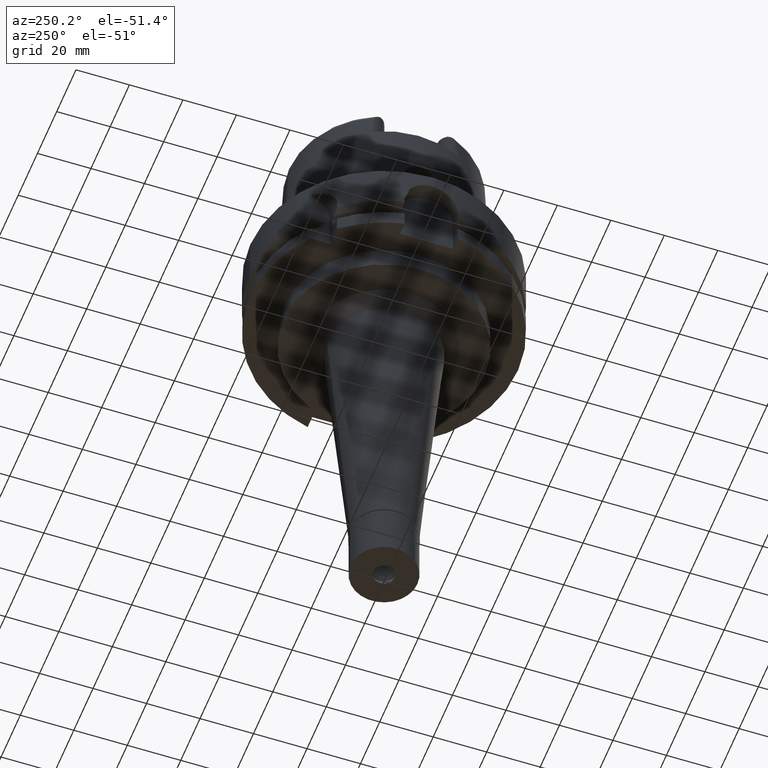
[diagram: clean part render]
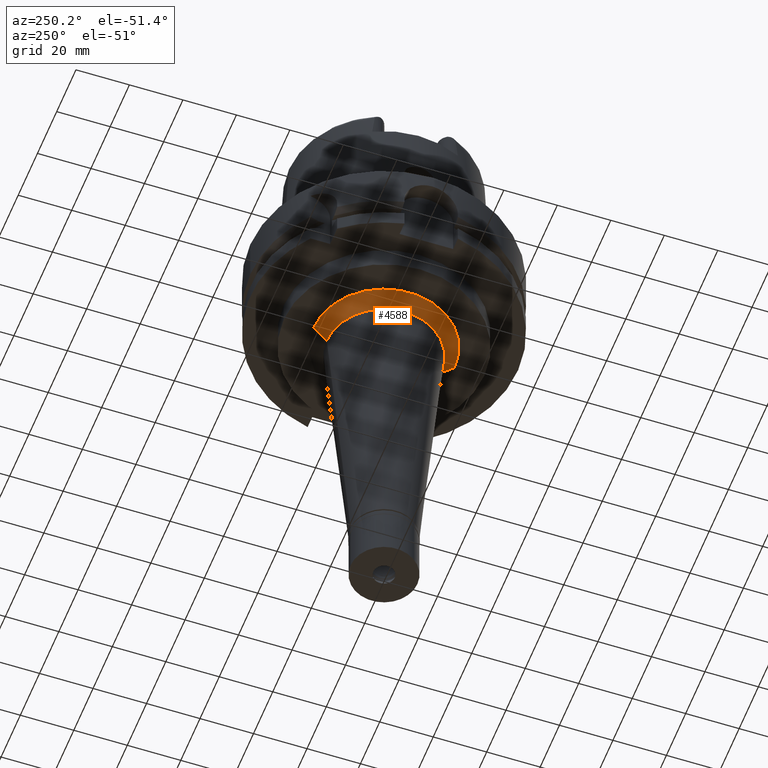
[diagram: same view with one face highlighted and labeled with its STEP entity id]
A machine part, auxiliary view. The second image highlights one B-rep face of the part: STEP entity #4588.
In plain terms, the highlighted conical surface has half-angle 45 deg.
Its self-contained STEP definition (entity closure, byte-faithful):
#143 = AXIS2_PLACEMENT_3D ( 'NONE', #2489, #2879, #4205 ) ;
#220 = DIRECTION ( 'NONE',  ( 0.0000000000000000000, -0.7071067811867980391, -0.7071067811862969954 ) ) ;
#276 = ORIENTED_EDGE ( 'NONE', *, *, #2790, .T. ) ;
#277 = CARTESIAN_POINT ( 'NONE',  ( 0.0000000000000000000, 26.39759708058999976, -37.00000000000000000 ) ) ;
#464 = CONICAL_SURFACE ( 'NONE', #4869, 23.89759708058999976, 0.7853981633972997312 ) ;
#476 = DIRECTION ( 'NONE',  ( 0.0000000000000000000, -1.000000000000000000, 0.0000000000000000000 ) ) ;
#864 = VERTEX_POINT ( 'NONE', #4962 ) ;
#1095 = CIRCLE ( 'NONE', #3434, 26.39759708058999976 ) ;
#1266 = FACE_OUTER_BOUND ( 'NONE', #1378, .T. ) ;
#1378 = EDGE_LOOP ( 'NONE', ( #2339, #3294, #2104, #276 ) ) ;
#1404 = CARTESIAN_POINT ( 'NONE',  ( 0.0000000000000000000, -26.39759708058999976, -37.00000000000000000 ) ) ;
#1807 = EDGE_CURVE ( 'NONE', #4840, #3418, #4815, .T. ) ;
#1961 = CARTESIAN_POINT ( 'NONE',  ( 0.0000000000000000000, -21.39759708058999976, -42.00000000000000000 ) ) ;
#2104 = ORIENTED_EDGE ( 'NONE', *, *, #4343, .T. ) ;
#2227 = VERTEX_POINT ( 'NONE', #4394 ) ;
#2339 = ORIENTED_EDGE ( 'NONE', *, *, #3365, .F. ) ;
#2489 = CARTESIAN_POINT ( 'NONE',  ( 0.0000000000000000000, 0.0000000000000000000, -42.00000000000000000 ) ) ;
#2736 = VECTOR ( 'NONE', #3605, 1000.000000000000000 ) ;
#2790 = EDGE_CURVE ( 'NONE', #864, #2227, #3604, .T. ) ;
#2844 = CIRCLE ( 'NONE', #143, 21.39759708058999976 ) ;
#2879 = DIRECTION ( 'NONE',  ( 0.0000000000000000000, 0.0000000000000000000, -1.000000000000000000 ) ) ;
#2999 = CARTESIAN_POINT ( 'NONE',  ( 0.0000000000000000000, 0.0000000000000000000, -39.50000000000000000 ) ) ;
#3294 = ORIENTED_EDGE ( 'NONE', *, *, #1807, .F. ) ;
#3365 = EDGE_CURVE ( 'NONE', #3418, #2227, #2844, .T. ) ;
#3367 = DIRECTION ( 'NONE',  ( 0.0000000000000000000, 1.000000000000000000, 0.0000000000000000000 ) ) ;
#3418 = VERTEX_POINT ( 'NONE', #1961 ) ;
#3434 = AXIS2_PLACEMENT_3D ( 'NONE', #3463, #4338, #476 ) ;
#3463 = CARTESIAN_POINT ( 'NONE',  ( 0.0000000000000000000, 0.0000000000000000000, -37.00000000000000000 ) ) ;
#3501 = CARTESIAN_POINT ( 'NONE',  ( 0.0000000000000000000, -26.39759708058999976, -37.00000000000000000 ) ) ;
#3604 = LINE ( 'NONE', #277, #4999 ) ;
#3605 = DIRECTION ( 'NONE',  ( 0.0000000000000000000, 0.7071067811867980391, -0.7071067811862969954 ) ) ;
#4205 = DIRECTION ( 'NONE',  ( 0.0000000000000000000, -1.000000000000000000, 0.0000000000000000000 ) ) ;
#4338 = DIRECTION ( 'NONE',  ( 0.0000000000000000000, 0.0000000000000000000, -1.000000000000000000 ) ) ;
#4343 = EDGE_CURVE ( 'NONE', #4840, #864, #1095, .T. ) ;
#4394 = CARTESIAN_POINT ( 'NONE',  ( 0.0000000000000000000, 21.39759708058999976, -42.00000000000000000 ) ) ;
#4588 = ADVANCED_FACE ( 'NONE', ( #1266 ), #464, .T. ) ;
#4815 = LINE ( 'NONE', #3501, #2736 ) ;
#4840 = VERTEX_POINT ( 'NONE', #1404 ) ;
#4869 = AXIS2_PLACEMENT_3D ( 'NONE', #2999, #5587, #3367 ) ;
#4962 = CARTESIAN_POINT ( 'NONE',  ( 0.0000000000000000000, 26.39759708058999976, -37.00000000000000000 ) ) ;
#4999 = VECTOR ( 'NONE', #220, 1000.000000000000000 ) ;
#5587 = DIRECTION ( 'NONE',  ( 0.0000000000000000000, 0.0000000000000000000, 1.000000000000000000 ) ) ;